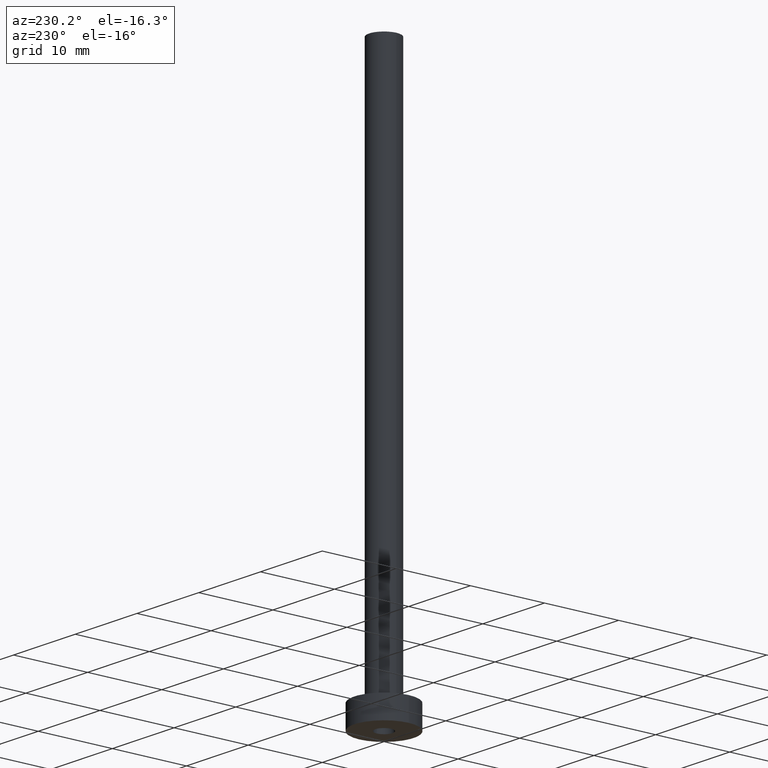
[diagram: clean part render]
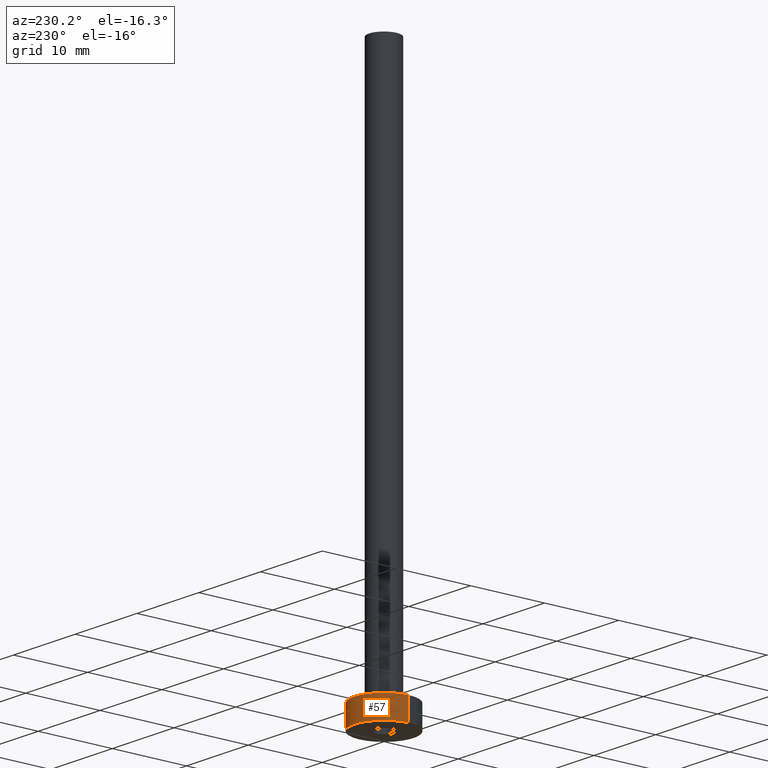
[diagram: same view with one face highlighted and labeled with its STEP entity id]
A machine part, auxiliary view. The second image highlights one B-rep face of the part: STEP entity #57.
In plain terms, the highlighted cylindrical surface (partial cylindrical patch) has radius 4 mm, axis along (-0, -0, -1).
Its self-contained STEP definition (entity closure, byte-faithful):
#1 = FACE_OUTER_BOUND ( 'NONE', #16, .T. ) ;
#4 = CARTESIAN_POINT ( 'NONE',  ( 4.000000000000000000, 4.898587196589412829E-16, 3.000000000000000000 ) ) ;
#5 = DIRECTION ( 'NONE',  ( -0.000000000000000000, -0.000000000000000000, -1.000000000000000000 ) ) ;
#16 = EDGE_LOOP ( 'NONE', ( #318, #305, #113, #181 ) ) ;
#17 = EDGE_CURVE ( 'NONE', #239, #42, #237, .T. ) ;
#24 = VERTEX_POINT ( 'NONE', #308 ) ;
#27 = CIRCLE ( 'NONE', #299, 4.000000000000000000 ) ;
#42 = VERTEX_POINT ( 'NONE', #257 ) ;
#43 = DIRECTION ( 'NONE',  ( 1.000000000000000000, 0.000000000000000000, 0.000000000000000000 ) ) ;
#57 = ADVANCED_FACE ( 'NONE', ( #1 ), #70, .T. ) ;
#65 = DIRECTION ( 'NONE',  ( -0.000000000000000000, -0.000000000000000000, -1.000000000000000000 ) ) ;
#70 = CYLINDRICAL_SURFACE ( 'NONE', #160, 4.000000000000000000 ) ;
#92 = CARTESIAN_POINT ( 'NONE',  ( 4.000000000000000000, 4.898587196589412829E-16, 0.000000000000000000 ) ) ;
#112 = CARTESIAN_POINT ( 'NONE',  ( 0.000000000000000000, 0.000000000000000000, 3.000000000000000000 ) ) ;
#113 = ORIENTED_EDGE ( 'NONE', *, *, #184, .T. ) ;
#140 = EDGE_CURVE ( 'NONE', #239, #209, #288, .T. ) ;
#160 = AXIS2_PLACEMENT_3D ( 'NONE', #177, #330, #333 ) ;
#177 = CARTESIAN_POINT ( 'NONE',  ( 0.000000000000000000, 0.000000000000000000, 3.000000000000000000 ) ) ;
#181 = ORIENTED_EDGE ( 'NONE', *, *, #455, .F. ) ;
#184 = EDGE_CURVE ( 'NONE', #209, #24, #27, .T. ) ;
#209 = VERTEX_POINT ( 'NONE', #92 ) ;
#224 = DIRECTION ( 'NONE',  ( 0.000000000000000000, 0.000000000000000000, 1.000000000000000000 ) ) ;
#237 = CIRCLE ( 'NONE', #302, 4.000000000000000000 ) ;
#239 = VERTEX_POINT ( 'NONE', #4 ) ;
#252 = LINE ( 'NONE', #430, #295 ) ;
#257 = CARTESIAN_POINT ( 'NONE',  ( -4.000000000000000000, 0.000000000000000000, 3.000000000000000000 ) ) ;
#271 = DIRECTION ( 'NONE',  ( 1.000000000000000000, 0.000000000000000000, 0.000000000000000000 ) ) ;
#288 = LINE ( 'NONE', #291, #436 ) ;
#291 = CARTESIAN_POINT ( 'NONE',  ( 4.000000000000000000, 4.898587196589412829E-16, 3.000000000000000000 ) ) ;
#295 = VECTOR ( 'NONE', #65, 1000.000000000000000 ) ;
#299 = AXIS2_PLACEMENT_3D ( 'NONE', #351, #224, #271 ) ;
#302 = AXIS2_PLACEMENT_3D ( 'NONE', #112, #382, #43 ) ;
#305 = ORIENTED_EDGE ( 'NONE', *, *, #140, .T. ) ;
#308 = CARTESIAN_POINT ( 'NONE',  ( -4.000000000000000000, 0.000000000000000000, 0.000000000000000000 ) ) ;
#318 = ORIENTED_EDGE ( 'NONE', *, *, #17, .F. ) ;
#330 = DIRECTION ( 'NONE',  ( -0.000000000000000000, -0.000000000000000000, -1.000000000000000000 ) ) ;
#333 = DIRECTION ( 'NONE',  ( -1.000000000000000000, 0.000000000000000000, 0.000000000000000000 ) ) ;
#351 = CARTESIAN_POINT ( 'NONE',  ( 0.000000000000000000, 0.000000000000000000, 0.000000000000000000 ) ) ;
#382 = DIRECTION ( 'NONE',  ( 0.000000000000000000, 0.000000000000000000, 1.000000000000000000 ) ) ;
#430 = CARTESIAN_POINT ( 'NONE',  ( -4.000000000000000000, 0.000000000000000000, 3.000000000000000000 ) ) ;
#436 = VECTOR ( 'NONE', #5, 1000.000000000000000 ) ;
#455 = EDGE_CURVE ( 'NONE', #42, #24, #252, .T. ) ;